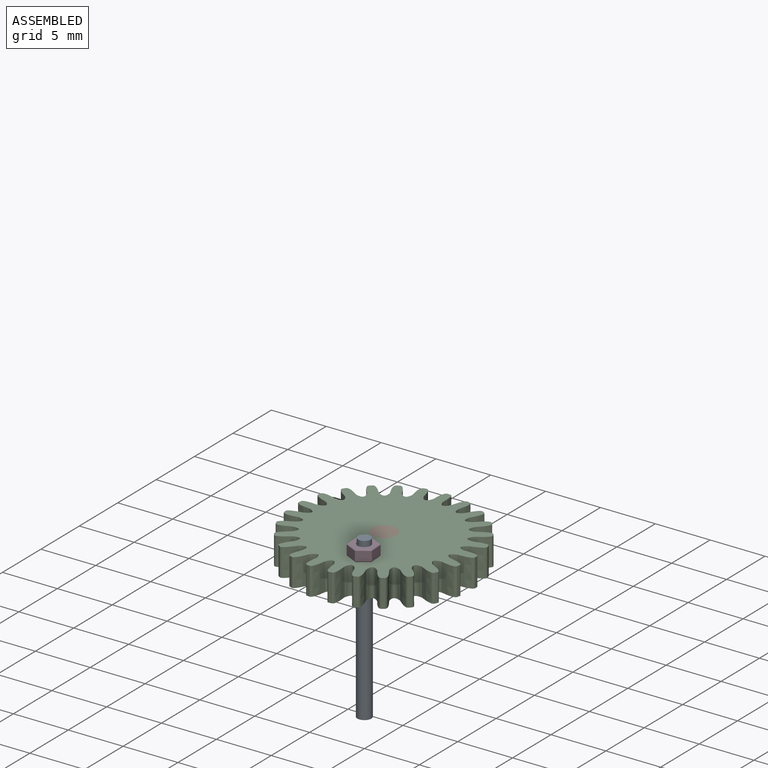
[diagram: assembled view]
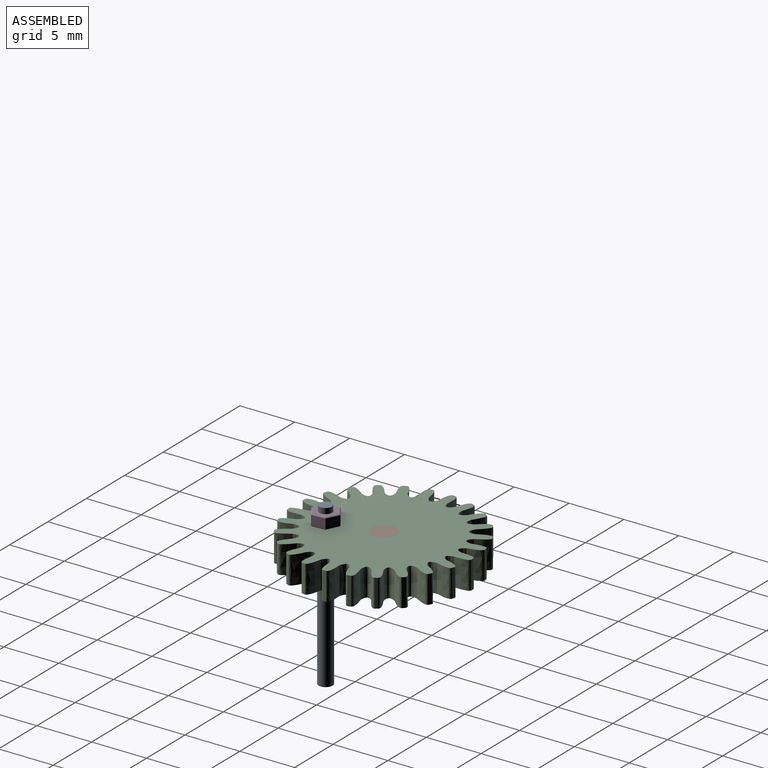
[diagram: assembled view, second angle]
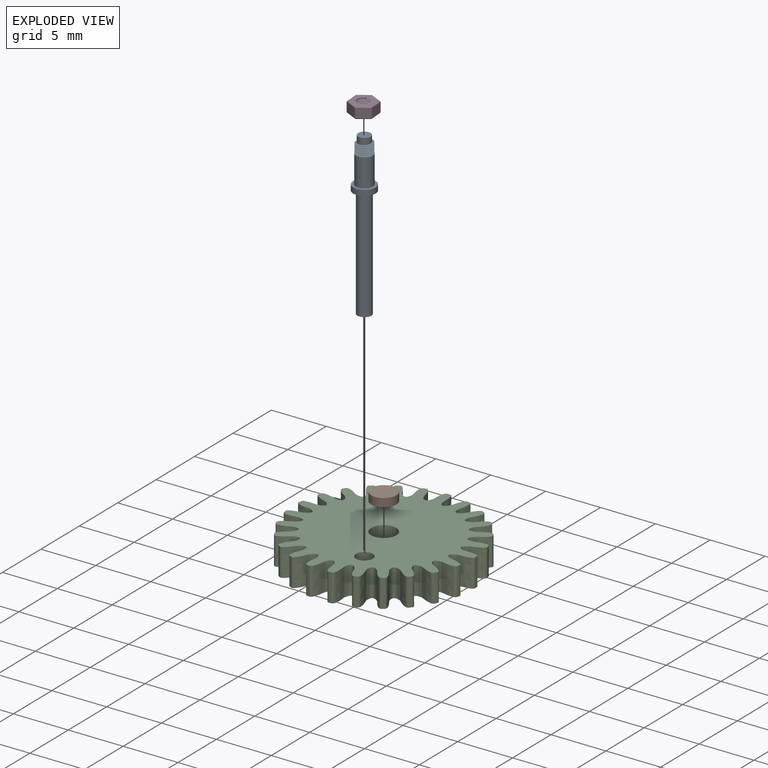
[diagram: exploded view]
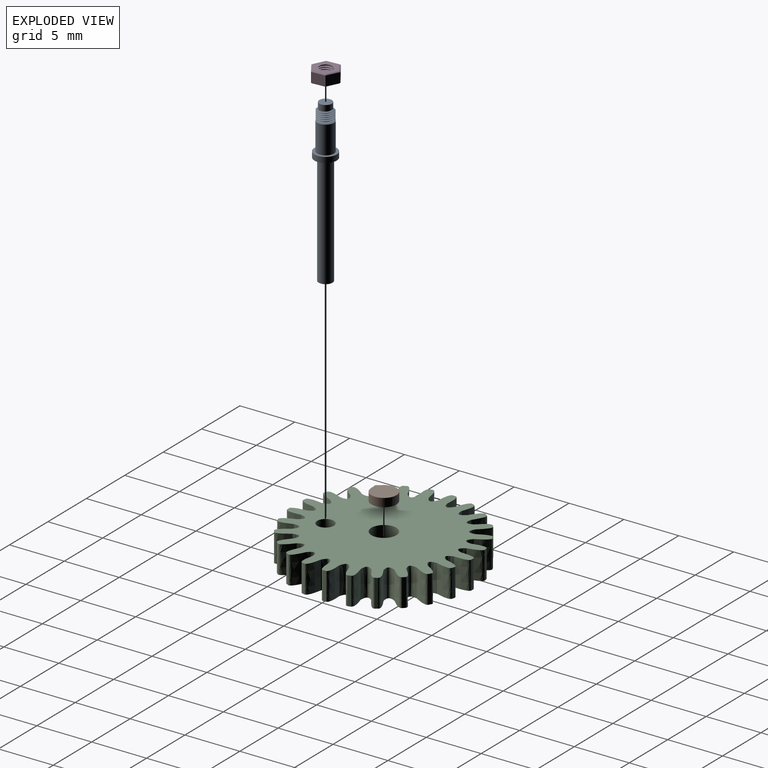
[diagram: exploded view, second angle]
ASSEMBLY  parts=4 mates=3
PART A: 17 faces, bbox 2.1x2.3x14.8 mm
  f0: cylinder r=0.76mm len=2.54mm, axis (0,0,-1), area 12.2mm2, adj f1,f13
  f1: plane 1.61x1.61mm, normal (0,0,1), area 0.5mm2, adj f0,f2,f3,f9
  f2: cylinder r=0.57mm len=0.87mm, axis (0,0,-1), area 0mm2, adj f1,f3,f9
  f3: cylinder r=0.57mm len=1.14mm, axis (0,0,-1), area 0.2mm2, adj f1,f2,f4,f9
  f4: cylinder r=0.57mm len=1.14mm, axis (0,0,-1), area 0.2mm2, adj f3,f5,f9
  f5: cylinder r=0.57mm len=1.14mm, axis (0,0,-1), area 0.2mm2, adj f4,f6,f9
  f6: cylinder r=0.57mm len=1.14mm, axis (0,0,-1), area 0.2mm2, adj f5,f7,f9
  f7: cylinder r=0.57mm len=1.14mm, axis (0,0,-1), area 0.2mm2, adj f6,f8,f9
  f8: cylinder r=0.57mm len=1.14mm, axis (0,0,-1), area 2.1mm2, adj f7,f9,f10,f16
  f9: bspline ~2.17x1.88mm, area 9.1mm2, adj f1,f2,f3,f4,f5,f6,f7,f8
  f10: plane 0.26x0.11mm, normal (0,1,0), area 0mm2, adj f8,f9
  f11: cylinder r=1.02mm len=2.03mm, axis (0,0,1), area 3.2mm2, adj f12,f13
  f12: plane 2.03x2.03mm, normal (0,0,-1), area 2mm2, adj f11,f14
  f13: plane 2.03x2.03mm, normal (0,0,1), area 1.4mm2, adj f0,f11
  f14: cylinder r=0.64mm len=10.16mm, axis (0,0,1), area 40.5mm2, adj f12,f15
  f15: plane 1.27x1.27mm, normal (0,0,-1), area 1.3mm2, adj f14
  f16: plane 1.14x1.14mm, normal (0,0,1), area 1mm2, adj f8
PART B: 3 faces, bbox 2.3x2.3x0.8 mm
  f0: cylinder r=1.14mm len=2.29mm, axis (0,0,-1), area 5.5mm2, adj f1,f2
  f1: plane 2.29x2.29mm, normal (0,0,1), area 4.1mm2, adj f0
  f2: plane 2.29x2.29mm, normal (0,0,-1), area 4.1mm2, adj f0
PART C: 129 faces, bbox 16.4x16.4x2.5 mm
  f0: cylinder r=8.21mm len=2.54mm, axis (0,0,-1), area 0.7mm2, adj f3,f120,f121,f125
  f1: extruded ~2.54x1.18mm, area 3.8mm2, adj f2,f5,f120,f121
  f2: extruded ~2.54x0.51mm, area 1.6mm2, adj f1,f4,f120,f121
  f3: extruded ~2.54x1.41mm, area 3.8mm2, adj f0,f4,f120,f121
  f4: extruded ~2.54x0.55mm, area 1.6mm2, adj f2,f3,f120,f121
  f5: cylinder r=8.21mm len=2.54mm, axis (0,0,-1), area 0.7mm2, adj f1,f8,f120,f121
  f6: extruded ~2.54x1.07mm, area 3.8mm2, adj f7,f10,f120,f121
  f7: extruded ~2.54x0.58mm, area 1.6mm2, adj f6,f9,f120,f121
  f8: extruded ~2.54x1.4mm, area 3.8mm2, adj f5,f9,f120,f121
  f9: extruded ~2.54x0.6mm, area 1.6mm2, adj f7,f8,f120,f121
  f10: cylinder r=8.21mm len=2.54mm, axis (0,0,-1), area 0.7mm2, adj f6,f13,f120,f121
  f11: extruded ~2.54x1.26mm, area 3.8mm2, adj f12,f15,f120,f121
  f12: extruded ~2.54x0.62mm, area 1.6mm2, adj f11,f14,f120,f121
  f13: extruded ~2.54x1.3mm, area 3.8mm2, adj f10,f14,f120,f121
  f14: extruded ~2.54x0.62mm, area 1.6mm2, adj f12,f13,f120,f121
  f15: cylinder r=8.21mm len=2.54mm, axis (0,0,-1), area 0.7mm2, adj f11,f18,f120,f121
  f16: extruded ~2.54x1.38mm, area 3.8mm2, adj f17,f20,f120,f121
  f17: extruded ~2.54x0.61mm, area 1.6mm2, adj f16,f19,f120,f121
  f18: extruded ~2.54x1.12mm, area 3.8mm2, adj f15,f19,f120,f121
  f19: extruded ~2.54x0.59mm, area 1.6mm2, adj f17,f18,f120,f121
  f20: cylinder r=8.21mm len=2.54mm, axis (0,0,-1), area 0.7mm2, adj f16,f23,f120,f121
  f21: extruded ~2.54x1.42mm, area 3.8mm2, adj f22,f25,f120,f121
  f22: extruded ~2.54x0.57mm, area 1.6mm2, adj f21,f24,f120,f121
  f23: extruded ~2.54x1.13mm, area 3.8mm2, adj f20,f24,f120,f121
  f24: extruded ~2.54x0.53mm, area 1.6mm2, adj f22,f23,f120,f121
  f25: cylinder r=8.21mm len=2.54mm, axis (0,0,-1), area 0.7mm2, adj f21,f28,f120,f121
  f26: extruded ~2.54x1.36mm, area 3.8mm2, adj f27,f30,f120,f121
  f27: extruded ~2.54x0.49mm, area 1.6mm2, adj f26,f29,f120,f121
  f28: extruded ~2.54x1.3mm, area 3.8mm2, adj f25,f29,f120,f121
  f29: extruded ~2.54x0.44mm, area 1.6mm2, adj f27,f28,f120,f121
  f30: cylinder r=8.21mm len=2.54mm, axis (0,0,-1), area 0.7mm2, adj f26,f33,f120,f121
  f31: extruded ~2.54x1.22mm, area 3.8mm2, adj f32,f35,f120,f121
  f32: extruded ~2.54x0.49mm, area 1.6mm2, adj f31,f34,f120,f121
  f33: extruded ~2.54x1.4mm, area 3.8mm2, adj f30,f34,f120,f121
  f34: extruded ~2.54x0.53mm, area 1.6mm2, adj f32,f33,f120,f121
  f35: cylinder r=8.21mm len=2.54mm, axis (0,0,-1), area 0.7mm2, adj f31,f38,f120,f121
  f36: extruded ~2.54x1.02mm, area 3.8mm2, adj f37,f40,f120,f121
  f37: extruded ~2.54x0.57mm, area 1.6mm2, adj f36,f39,f120,f121
  f38: extruded ~2.54x1.41mm, area 3.8mm2, adj f35,f39,f120,f121
  f39: extruded ~2.54x0.59mm, area 1.6mm2, adj f37,f38,f120,f121
  f40: cylinder r=8.21mm len=2.54mm, axis (0,0,-1), area 0.7mm2, adj f36,f43,f120,f121
  f41: extruded ~2.54x1.22mm, area 3.8mm2, adj f42,f45,f120,f121
  f42: extruded ~2.54x0.61mm, area 1.6mm2, adj f41,f44,f120,f121
  f43: extruded ~2.54x1.33mm, area 3.8mm2, adj f40,f44,f120,f121
  f44: extruded ~2.54x0.62mm, area 1.6mm2, adj f42,f43,f120,f121
  f45: cylinder r=8.21mm len=2.54mm, axis (0,0,-1), area 0.7mm2, adj f41,f48,f120,f121
  f46: extruded ~2.54x1.36mm, area 3.8mm2, adj f47,f50,f120,f121
  f47: extruded ~2.54x0.62mm, area 1.6mm2, adj f46,f49,f120,f121
  f48: extruded ~2.54x1.17mm, area 3.8mm2, adj f45,f49,f120,f121
  f49: extruded ~2.54x0.6mm, area 1.6mm2, adj f47,f48,f120,f121
  f50: cylinder r=8.21mm len=2.54mm, axis (0,0,-1), area 0.7mm2, adj f46,f53,f120,f121
  f51: extruded ~2.54x1.42mm, area 3.8mm2, adj f52,f55,f120,f121
  f52: extruded ~2.54x0.58mm, area 1.6mm2, adj f51,f54,f120,f121
  f53: extruded ~2.54x1.08mm, area 3.8mm2, adj f50,f54,f120,f121
  f54: extruded ~2.54x0.55mm, area 1.6mm2, adj f52,f53,f120,f121
  f55: cylinder r=8.21mm len=2.54mm, axis (0,0,-1), area 0.7mm2, adj f51,f58,f120,f121
  f56: extruded ~2.54x1.38mm, area 3.8mm2, adj f57,f60,f120,f121
  f57: extruded ~2.54x0.51mm, area 1.6mm2, adj f56,f59,f120,f121
  f58: extruded ~2.54x1.26mm, area 3.8mm2, adj f55,f59,f120,f121
  f59: extruded ~2.54x0.47mm, area 1.6mm2, adj f57,f58,f120,f121
  f60: cylinder r=8.21mm len=2.54mm, axis (0,0,-1), area 0.7mm2, adj f56,f63,f120,f121
  f61: extruded ~2.54x1.26mm, area 3.8mm2, adj f62,f65,f120,f121
  f62: extruded ~2.54x0.47mm, area 1.6mm2, adj f61,f64,f120,f121
  f63: extruded ~2.54x1.38mm, area 3.8mm2, adj f60,f64,f120,f121
  f64: extruded ~2.54x0.51mm, area 1.6mm2, adj f62,f63,f120,f121
  f65: cylinder r=8.21mm len=2.54mm, axis (0,0,-1), area 0.7mm2, adj f61,f68,f120,f121
  f66: extruded ~2.54x1.08mm, area 3.8mm2, adj f67,f70,f120,f121
  f67: extruded ~2.54x0.55mm, area 1.6mm2, adj f66,f69,f120,f121
  f68: extruded ~2.54x1.42mm, area 3.8mm2, adj f65,f69,f120,f121
  f69: extruded ~2.54x0.58mm, area 1.6mm2, adj f67,f68,f120,f121
  f70: cylinder r=8.21mm len=2.54mm, axis (0,0,-1), area 0.7mm2, adj f66,f73,f120,f121
  f71: extruded ~2.54x1.17mm, area 3.8mm2, adj f72,f75,f120,f121
  f72: extruded ~2.54x0.6mm, area 1.6mm2, adj f71,f74,f120,f121
  f73: extruded ~2.54x1.36mm, area 3.8mm2, adj f70,f74,f120,f121
  f74: extruded ~2.54x0.62mm, area 1.6mm2, adj f72,f73,f120,f121
  f75: cylinder r=8.21mm len=2.54mm, axis (0,0,-1), area 0.7mm2, adj f71,f78,f120,f121
  f76: extruded ~2.54x1.33mm, area 3.8mm2, adj f77,f80,f120,f121
  f77: extruded ~2.54x0.62mm, area 1.6mm2, adj f76,f79,f120,f121
  f78: extruded ~2.54x1.22mm, area 3.8mm2, adj f75,f79,f120,f121
  f79: extruded ~2.54x0.61mm, area 1.6mm2, adj f77,f78,f120,f121
  f80: cylinder r=8.21mm len=2.54mm, axis (0,0,-1), area 0.7mm2, adj f76,f83,f120,f121
  f81: extruded ~2.54x1.41mm, area 3.8mm2, adj f82,f85,f120,f121
  f82: extruded ~2.54x0.59mm, area 1.6mm2, adj f81,f84,f120,f121
  f83: extruded ~2.54x1.02mm, area 3.8mm2, adj f80,f84,f120,f121
  f84: extruded ~2.54x0.57mm, area 1.6mm2, adj f82,f83,f120,f121
  f85: cylinder r=8.21mm len=2.54mm, axis (0,0,-1), area 0.7mm2, adj f81,f88,f120,f121
  f86: extruded ~2.54x1.4mm, area 3.8mm2, adj f87,f90,f120,f121
  f87: extruded ~2.54x0.53mm, area 1.6mm2, adj f86,f89,f120,f121
  f88: extruded ~2.54x1.22mm, area 3.8mm2, adj f85,f89,f120,f121
  f89: extruded ~2.54x0.49mm, area 1.6mm2, adj f87,f88,f120,f121
  f90: cylinder r=8.21mm len=2.54mm, axis (0,0,-1), area 0.7mm2, adj f86,f93,f120,f121
  f91: extruded ~2.54x1.3mm, area 3.8mm2, adj f92,f95,f120,f121
  f92: extruded ~2.54x0.44mm, area 1.6mm2, adj f91,f94,f120,f121
  f93: extruded ~2.54x1.36mm, area 3.8mm2, adj f90,f94,f120,f121
  f94: extruded ~2.54x0.49mm, area 1.6mm2, adj f92,f93,f120,f121
  f95: cylinder r=8.21mm len=2.54mm, axis (0,0,-1), area 0.7mm2, adj f91,f98,f120,f121
  f96: extruded ~2.54x1.13mm, area 3.8mm2, adj f97,f100,f120,f121
  f97: extruded ~2.54x0.53mm, area 1.6mm2, adj f96,f99,f120,f121
  f98: extruded ~2.54x1.42mm, area 3.8mm2, adj f95,f99,f120,f121
  f99: extruded ~2.54x0.57mm, area 1.6mm2, adj f97,f98,f120,f121
  f100: cylinder r=8.21mm len=2.54mm, axis (0,0,-1), area 0.7mm2, adj f96,f103,f120,f121
  f101: extruded ~2.54x1.12mm, area 3.8mm2, adj f102,f105,f120,f121
  f102: extruded ~2.54x0.59mm, area 1.6mm2, adj f101,f104,f120,f121
  f103: extruded ~2.54x1.38mm, area 3.8mm2, adj f100,f104,f120,f121
  f104: extruded ~2.54x0.61mm, area 1.6mm2, adj f102,f103,f120,f121
  f105: cylinder r=8.21mm len=2.54mm, axis (0,0,-1), area 0.7mm2, adj f101,f108,f120,f121
  f106: extruded ~2.54x1.3mm, area 3.8mm2, adj f107,f110,f120,f121
  f107: extruded ~2.54x0.62mm, area 1.6mm2, adj f106,f109,f120,f121
  f108: extruded ~2.54x1.26mm, area 3.8mm2, adj f105,f109,f120,f121
  f109: extruded ~2.54x0.62mm, area 1.6mm2, adj f107,f108,f120,f121
  f110: cylinder r=8.21mm len=2.54mm, axis (0,0,-1), area 0.7mm2, adj f106,f113,f120,f121
  f111: extruded ~2.54x1.4mm, area 3.8mm2, adj f112,f115,f120,f121
  f112: extruded ~2.54x0.6mm, area 1.6mm2, adj f111,f114,f120,f121
  f113: extruded ~2.54x1.07mm, area 3.8mm2, adj f110,f114,f120,f121
  f114: extruded ~2.54x0.58mm, area 1.6mm2, adj f112,f113,f120,f121
  f115: cylinder r=8.21mm len=2.54mm, axis (0,0,-1), area 0.7mm2, adj f111,f118,f120,f121
  f116: extruded ~2.54x1.41mm, area 3.8mm2, adj f117,f120,f121,f124
  f117: extruded ~2.54x0.55mm, area 1.6mm2, adj f116,f119,f120,f121
  f118: extruded ~2.54x1.18mm, area 3.8mm2, adj f115,f119,f120,f121
  f119: extruded ~2.54x0.51mm, area 1.6mm2, adj f117,f118,f120,f121
  f120: plane 16.41x16.39mm, normal (0,0,1), area 161.9mm2, adj f0,f1,f2,f3,f4,f5,f6,f7
  f121: plane 16.41x16.39mm, normal (0,0,-1), area 161.9mm2, adj f0,f1,f2,f3,f4,f5,f6,f7
  f122: cylinder r=1.14mm len=2.54mm, axis (0,0,-1), area 18.2mm2, adj f120,f121
  f123: cylinder r=0.76mm len=2.54mm, axis (0,0,-1), area 12.2mm2, adj f120,f121
  f124: cylinder r=8.21mm len=2.54mm, axis (0,0,-1), area 0.7mm2, adj f116,f120,f121,f126
  f125: extruded ~2.54x1.33mm, area 3.8mm2, adj f0,f120,f121,f128
  f126: extruded ~2.54x1.33mm, area 3.8mm2, adj f120,f121,f124,f127
  f127: extruded ~2.54x0.46mm, area 1.6mm2, adj f120,f121,f126,f128
  f128: extruded ~2.54x0.46mm, area 1.6mm2, adj f120,f121,f125,f127
PART D: 24 faces, bbox 2.5x2.4x1.1 mm
  f0: plane 2.34x2.29mm, normal (0,0,1), area 2.4mm2, adj f6,f15,f16,f17,f18,f19,f20,f22
  f1: plane 0.93x0.89mm, normal (-0.74,-0.68,0), area 1.1mm2, adj f2,f7,f9,f15
  f2: plane 1.24x0.89mm, normal (0.22,-0.98,0), area 1.1mm2, adj f1,f3,f10,f16
  f3: plane 1.21x0.89mm, normal (0.95,-0.3,0), area 1.1mm2, adj f2,f4,f12,f18
  f4: plane 0.93x0.89mm, normal (0.74,0.68,0), area 1.1mm2, adj f3,f5,f14,f20
  f5: plane 1.24x0.89mm, normal (-0.22,0.98,0), area 1.1mm2, adj f4,f7,f13,f19
  f6: cylinder r=0.57mm len=1.14mm, axis (0,0,-1), area 1.1mm2, adj f0,f8,f21,f22
  f7: plane 1.21x0.89mm, normal (-0.95,0.3,0), area 1.1mm2, adj f1,f5,f11,f17
  f8: plane 2.34x2.29mm, normal (0,0,-1), area 2.7mm2, adj f6,f9,f10,f11,f12,f13,f14,f21
  f9: plane 0.95x0.88mm, normal (-0.52,-0.48,-0.71), area 0.1mm2, adj f1,f8,f10,f11
  f10: plane 1.24x0.33mm, normal (0.15,-0.69,-0.71), area 0.1mm2, adj f2,f8,f9,f12
  f11: plane 1.21x0.43mm, normal (-0.67,0.21,-0.71), area 0.1mm2, adj f7,f8,f9,f13
  f12: plane 1.21x0.43mm, normal (0.67,-0.21,-0.71), area 0.1mm2, adj f3,f8,f10,f14
  f13: plane 1.24x0.33mm, normal (-0.15,0.69,-0.71), area 0.1mm2, adj f5,f8,f11,f14
  f14: plane 0.95x0.88mm, normal (0.52,0.48,-0.71), area 0.1mm2, adj f4,f8,f12,f13
  f15: plane 0.95x0.88mm, normal (-0.52,-0.48,0.71), area 0.1mm2, adj f0,f1,f16,f17
  f16: plane 1.24x0.33mm, normal (0.15,-0.69,0.71), area 0.1mm2, adj f0,f2,f15,f18
  f17: plane 1.21x0.43mm, normal (-0.67,0.21,0.71), area 0.1mm2, adj f0,f7,f15,f19
  f18: plane 1.21x0.43mm, normal (0.67,-0.21,0.71), area 0.1mm2, adj f0,f3,f16,f20
  f19: plane 1.24x0.33mm, normal (-0.15,0.69,0.71), area 0.1mm2, adj f0,f5,f17,f20
  f20: plane 0.95x0.88mm, normal (0.52,0.48,0.71), area 0.1mm2, adj f0,f4,f18,f19
  f21: plane 0.25x0.12mm, normal (0,1,0), area 0mm2, adj f6,f8,f22
  f22: bspline ~2.19x1.9mm, area 9.7mm2, adj f0,f6,f8,f21,f23
  f23: plane 0.1x0.02mm, normal (0,-1,0), area 0mm2, adj f0,f22
PLACE A rot(axis=(0,0,1),106.6deg) t=(2.26,-6.1,-4.47)mm
PLACE B rot(axis=(-0.95,0.3,0),0deg) t=(-13.33,28.54,-2.69)mm fixed
PLACE C rot(axis=(0,0,1),106.6deg) t=(0.95,-1.7,-4.47)mm
PLACE D rot(axis=(0.6,0.8,0),180deg) t=(2.2,-6.11,-0.91)mm
MATE fastened A.f0 <-> C.f123  axis (0,0,1) through (2.26,-6.1,-1.93)mm
MATE revolute B.f0 <-> C.f122  axis (0,0,1) through (0.95,-1.7,-1.93)mm
MATE fastened D.f0 <-> C.f123  axis (0,0,-1) through (2.26,-6.1,-1.93)mm
